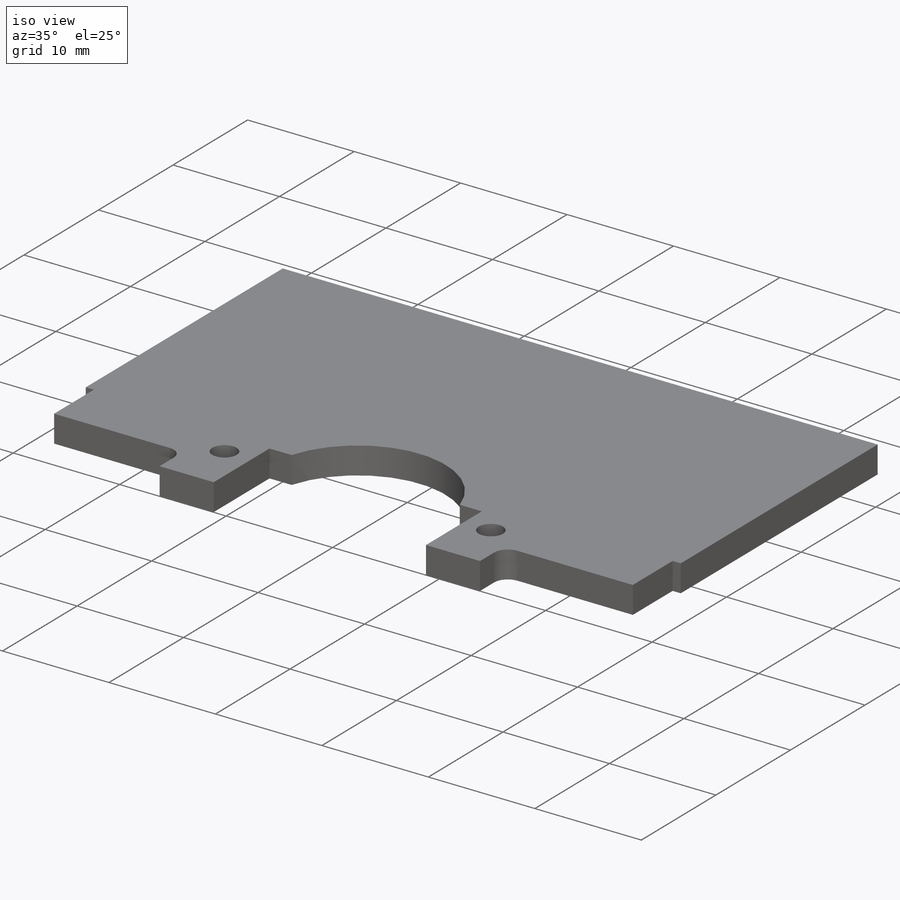
[diagram: iso view]
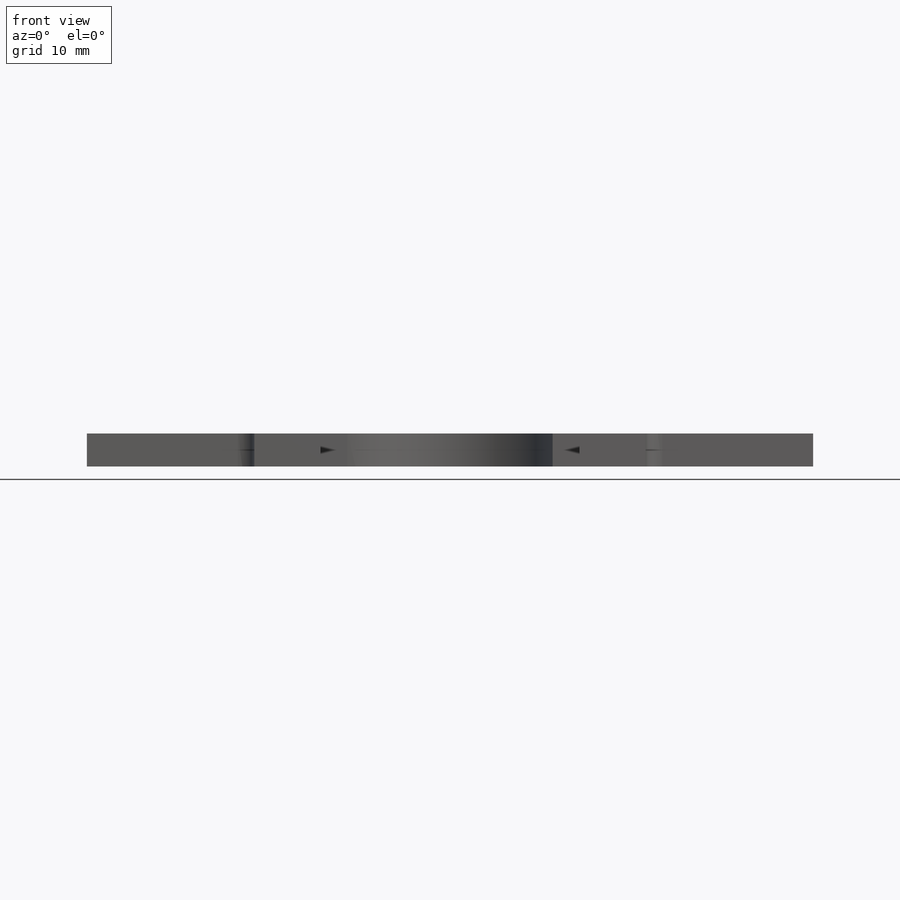
[diagram: front view]
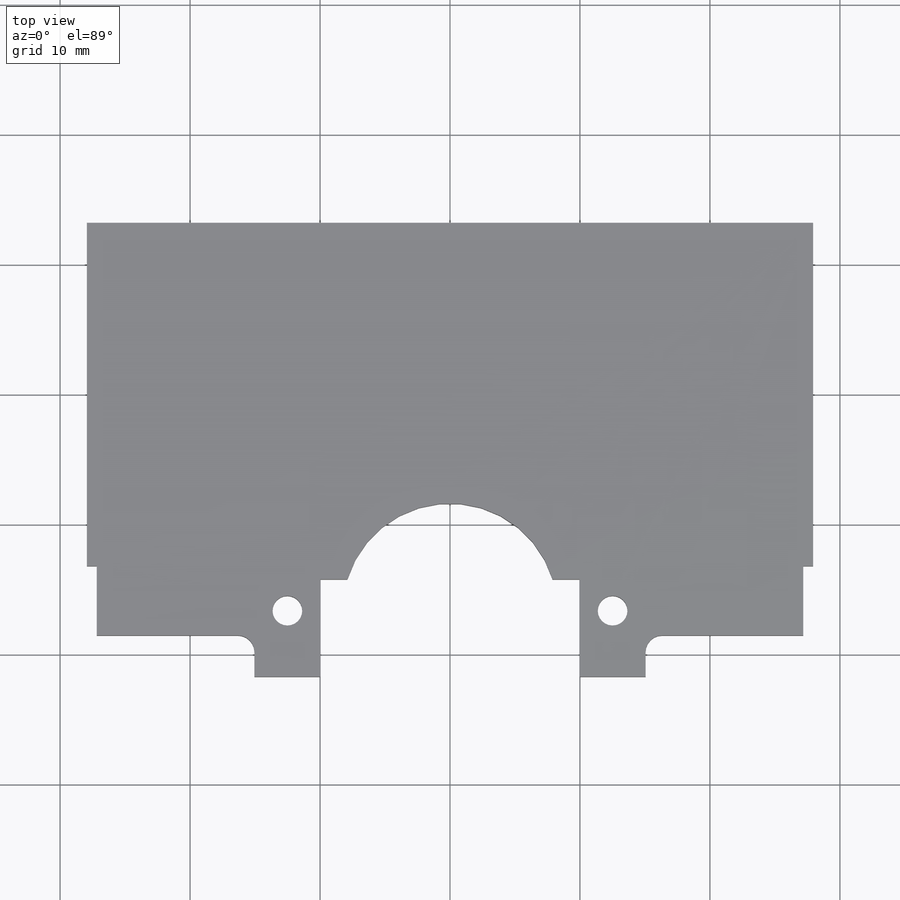
[diagram: top view]
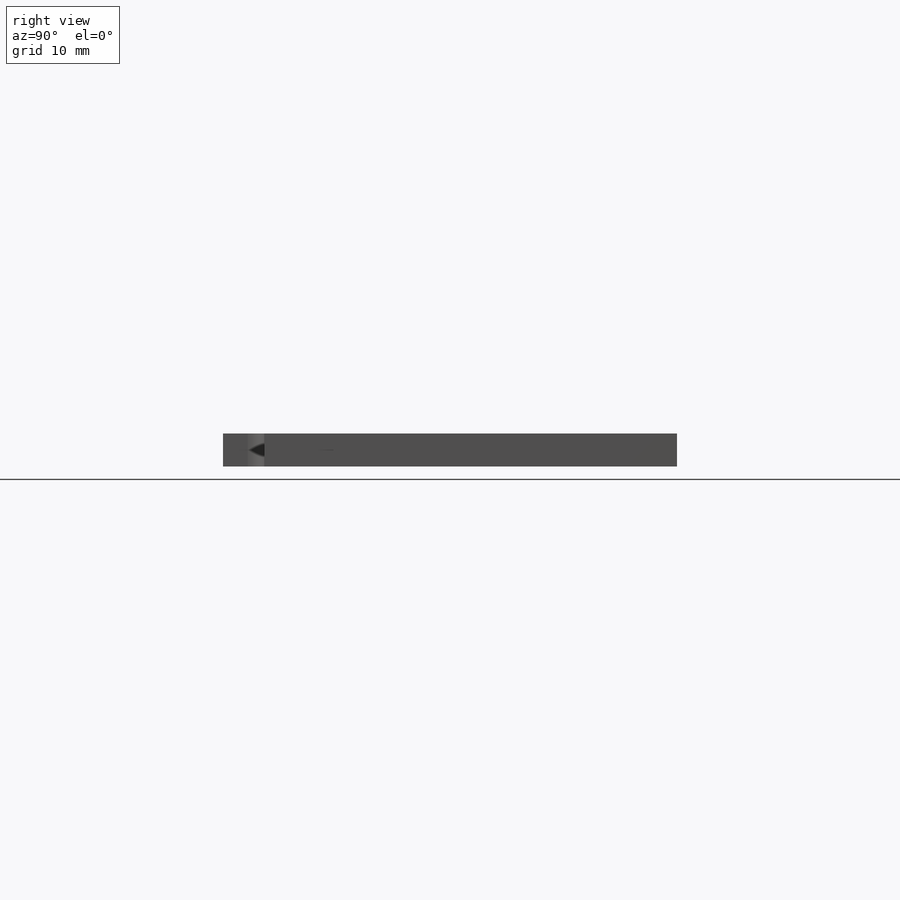
[diagram: right view]
SOLIDWORKS PART (.sldprt)
format: sldprt  version: not decoded by parser v0  size: 1,103,872 bytes
history: native  units: mm
features: sketch x3, fillet x2, material x1, extrude x1 (+12 scaffold rows collapsed)
feature tree (19):
  scaffold x12  (default folders/planes/origin — collapsed)
  material  "Material <not specified>"
  sketch  "Sketch1"  dims[D11=2.286mm D12=8.255mm D1=55.88mm D2=26.416mm D3=31.75mm D4=0.762mm D5=34.925mm D6=27.432mm D7=19.939mm D8=5.08mm D9=2.54mm D10=5.08mm]
  extrude  "Boss-Extrude1"  Depth=2.54mm
  fillet  "Fillet1"  Radius=1.27mm
  sketch  "hours"  dims[c1.D1=~33.981642mm c1.D3=~16.44883mm c1.D5=~2.958587mm c2.D5=22.5deg c2.D6=~2.844037mm c3.D6=22.5deg c3.D7=2.794mm c4.D7=22.5deg c4.D8=~2.836212mm c5.D8=22.5deg c5.D9=1.8546mm c6.D9=~21.523702deg c7.D9=~2.083549mm c8.D9=7.5deg c8.D10=~1.850495mm c9.D10=~20.361384deg c10.D10=~2.946584mm c11.D10=15.0deg c12.D10=~1.850495mm c13.D10=7.5deg c13.D11=~2.620318mm c14.D11=7.5deg c14.D12=~1.729465mm c15.D12=7.5deg c15.D13=~2.851878mm c15.D14=90.0deg c16.D13=2.794mm c17.D13=7.5deg c17.D14=~1.780018mm c18.D14=7.5deg c18.D15=~2.620318mm c19.D15=7.5deg c19.D16=~1.58278mm c20.D16=7.5deg c20.D2=1.27mm c20.D4=2.794mm c20.D8=1.778mm c20.D17=0.0mm]
  sketch  "minutes"
  fillet  "Sketch Picture3"  Radius=33.981642mm
decode coverage: 5 of 6 modeling features carry decoded parameters
note: ~ marks probable driven/reference dimensions
note: suppression state not decoded; provenance and decode notes live in map.json
